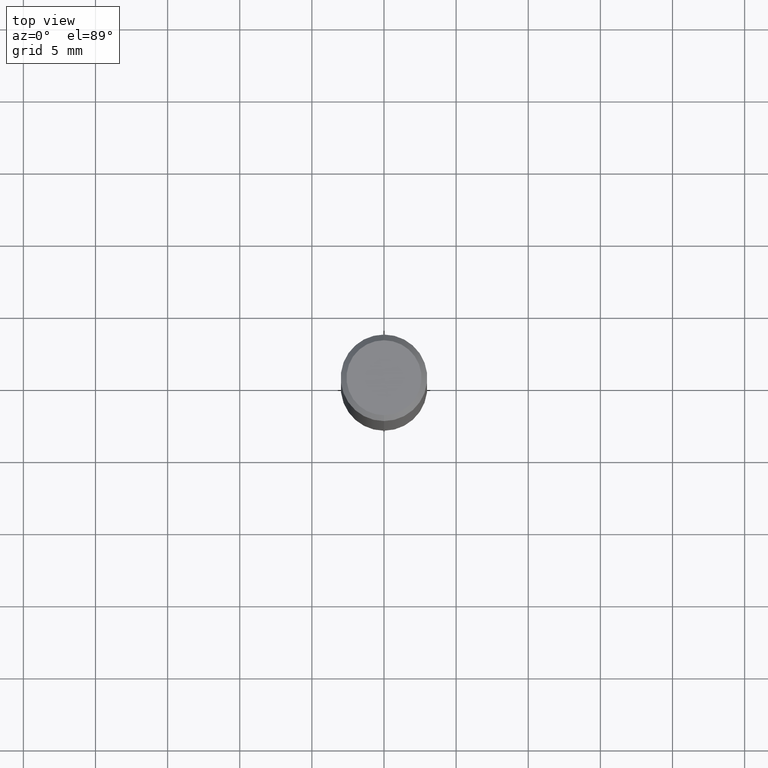
[diagram: clean part render]
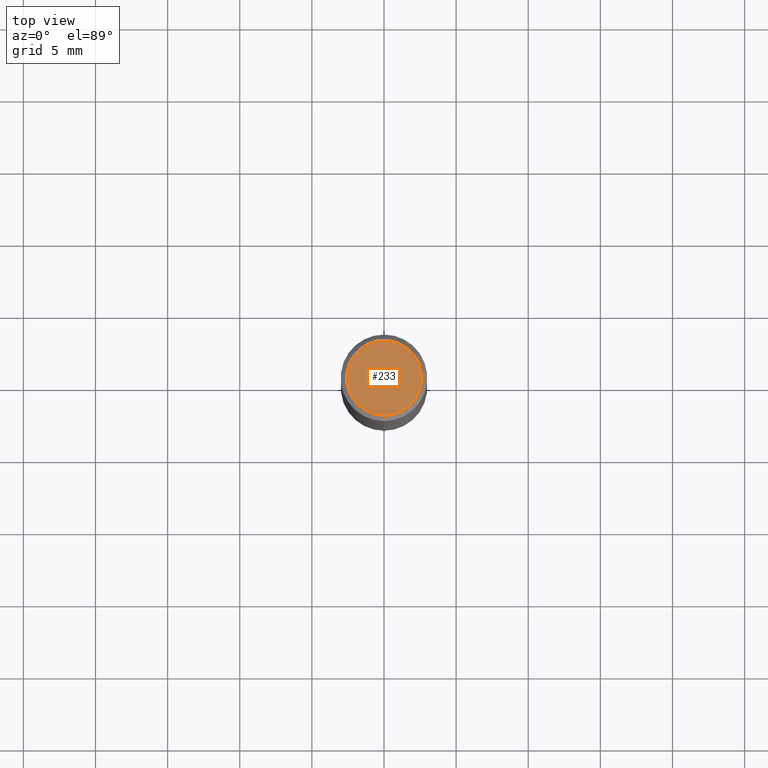
[diagram: same view with one face highlighted and labeled with its STEP entity id]
A machine part, top view. The second image highlights one B-rep face of the part: STEP entity #233.
In plain terms, the highlighted planar face has unit normal (-0, 0, 1).
Its self-contained STEP definition (entity closure, byte-faithful):
#143=EDGE_CURVE('',#213,#221,#335,.T.);
#213=VERTEX_POINT('',#417);
#221=VERTEX_POINT('',#425);
#225=EDGE_CURVE('',#221,#213,#429,.T.);
#233=ADVANCED_FACE('',(#437),#438,.T.);
#335=CIRCLE('',#546,2.6);
#417=CARTESIAN_POINT('',(3.18397651993818E-016,-2.6,0.0));
#425=CARTESIAN_POINT('',(0.0,2.6,0.0));
#429=CIRCLE('',#659,2.6);
#437=FACE_OUTER_BOUND('',#669,.T.);
#438=PLANE('',#670);
#546=AXIS2_PLACEMENT_3D('',#798,#799,#800);
#659=AXIS2_PLACEMENT_3D('',#909,#910,#911);
#669=EDGE_LOOP('',(#918,#919));
#670=AXIS2_PLACEMENT_3D('',#920,#921,#922);
#798=CARTESIAN_POINT('',(0.0,0.0,0.0));
#799=DIRECTION('',(0.0,0.0,-1.0));
#800=DIRECTION('',(0.0,1.0,0.0));
#909=CARTESIAN_POINT('',(0.0,0.0,0.0));
#910=DIRECTION('',(0.0,0.0,-1.0));
#911=DIRECTION('',(0.0,1.0,0.0));
#918=ORIENTED_EDGE('',*,*,#225,.F.);
#919=ORIENTED_EDGE('',*,*,#143,.F.);
#920=CARTESIAN_POINT('',(0.0,1.3,0.0));
#921=DIRECTION('',(-0.0,0.0,1.0));
#922=DIRECTION('',(0.0,-1.0,0.0));